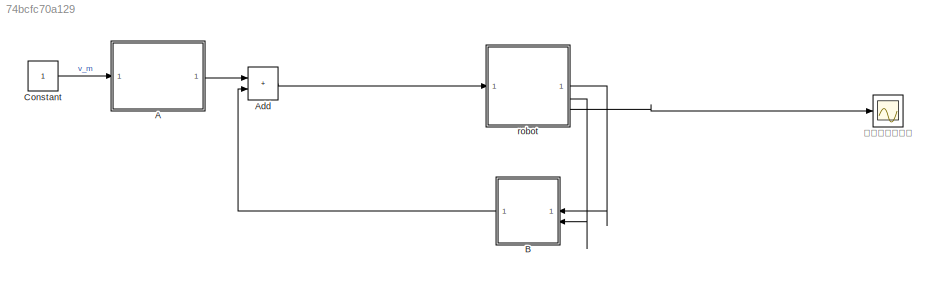
MODEL slx_74bcfc70a129
KIND model
CONFIG AbsTol = auto
CONFIG EnableMultiTasking = off
CONFIG FixedStep = auto
CONFIG MaxStep = auto
CONFIG MinStep = auto
CONFIG RelTol = 1e-3
CONFIG SampleTimeConstraint = Unconstrained
CONFIG SolverName = VariableStepAuto
CONFIG StartTime = 0.0
CONFIG StopTime = 10
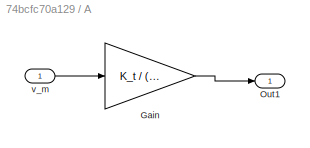
BLOCK [SubSystem] A
BLOCK [Gain] A/Gain
  Gain = K_t / (R*(m*r^2 + J))
BLOCK [Outport] A/Out1
BLOCK [Inport] A/v_m
BLOCK [Sum] Add
  IconShape = rectangular
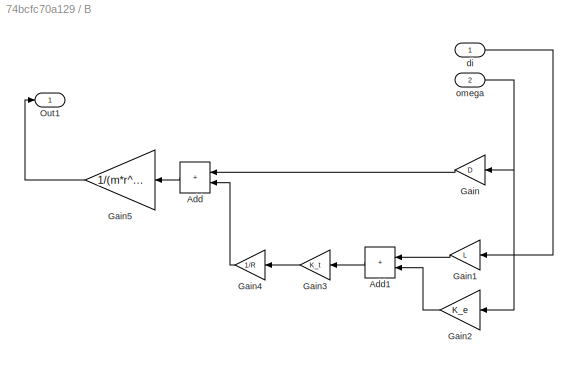
BLOCK [SubSystem] B
  NameLocation = top
BLOCK [Sum] B/Add
  IconShape = rectangular
  NameLocation = top
BLOCK [Sum] B/Add1
  IconShape = rectangular
  NameLocation = top
BLOCK [Gain] B/Gain
  Gain = D
  NameLocation = top
BLOCK [Gain] B/Gain1
  Gain = L
  NameLocation = top
BLOCK [Gain] B/Gain2
  Gain = K_e
  NameLocation = top
BLOCK [Gain] B/Gain3
  Gain = K_t
  NameLocation = top
BLOCK [Gain] B/Gain4
  Gain = 1/R
  NameLocation = top
BLOCK [Gain] B/Gain5
  Gain = 1/(m*r^2+J)
  NameLocation = top
BLOCK [Outport] B/Out1
BLOCK [Inport] B/di
BLOCK [Inport] B/omega
  Port = 2
BLOCK [Constant] Constant
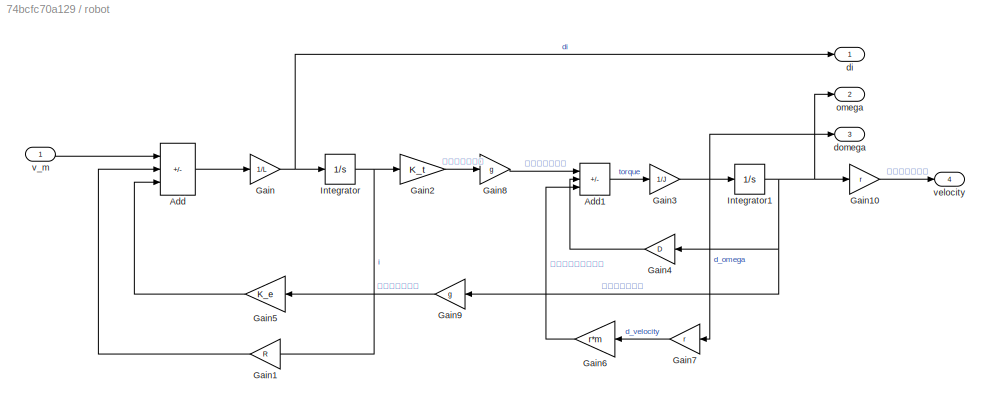
BLOCK [SubSystem] robot
BLOCK [Sum] robot/Add
  IconShape = rectangular
  Inputs = +--
BLOCK [Sum] robot/Add1
  IconShape = rectangular
  Inputs = +--
BLOCK [Gain] robot/Gain
  Gain = 1/L
BLOCK [Gain] robot/Gain1
  Gain = R
  NameLocation = top
BLOCK [Gain] robot/Gain10
  Gain = r
BLOCK [Gain] robot/Gain2
  Gain = K_t
BLOCK [Gain] robot/Gain3
  Gain = 1/J
BLOCK [Gain] robot/Gain4
  Gain = D
  NameLocation = top
BLOCK [Gain] robot/Gain5
  Gain = K_e
  NameLocation = top
BLOCK [Gain] robot/Gain6
  Gain = r*m
  NameLocation = top
BLOCK [Gain] robot/Gain7
  Gain = r
  NameLocation = top
BLOCK [Gain] robot/Gain8
  Gain = g
BLOCK [Gain] robot/Gain9
  Gain = g
  NameLocation = top
BLOCK [Integrator] robot/Integrator
BLOCK [Integrator] robot/Integrator1
BLOCK [Outport] robot/di
BLOCK [Outport] robot/domega
  Port = 3
BLOCK [Outport] robot/omega
  Port = 2
BLOCK [Inport] robot/v_m
BLOCK [Outport] robot/velocity
  Port = 4
BLOCK [Scope] ロボットの速度
  Floating = off
  NumInputPorts = 1
  ScopeSpecificationString = Simulink.scopes.TimeScopeBlockCfg('CurrentConfiguration', extmgr.ConfigurationSet(extmgr.Configuration('Core','General UI',true),extmgr.Configuration('Core','Source UI',true),extmgr.Configuration('Sources','WiredSimulink',true,'DataLoggingVariableName','ScopeData1'),extmgr.Configuration('Visuals','Time Domain',true,'SerializedDisplays',{struct('MinYLimReal','-490.38087','MaxYLimReal','693.99135','...<+1414ch>
LINE A/Gain:1 -> A/Out1:1
LINE A/v_m:1 -> A/Gain:1
LINE A:1 -> Add:1
LINE Add:1 -> robot:1
LINE B/Add1:1 -> B/Gain3:1
LINE B/Add:1 -> B/Gain5:1
LINE B/Gain1:1 -> B/Add1:1
LINE B/Gain2:1 -> B/Add1:2
LINE B/Gain3:1 -> B/Gain4:1
LINE B/Gain4:1 -> B/Add:2
LINE B/Gain5:1 -> B/Out1:1
LINE B/Gain:1 -> B/Add:1
LINE B/di:1 -> B/Gain1:1
NET B/omega:1 -> B/Gain2:1, B/Gain:1
LINE B:1 -> Add:2
LINE Constant:1 -> A:1
LINE robot/Add1:1 -> robot/Gain3:1
LINE robot/Add:1 -> robot/Gain:1
LINE robot/Gain10:1 -> robot/velocity:1
LINE robot/Gain1:1 -> robot/Add:2
LINE robot/Gain2:1 -> robot/Gain8:1
NET robot/Gain3:1 -> robot/Gain7:1, robot/Integrator1:1, robot/domega:1
LINE robot/Gain4:1 -> robot/Add1:2
LINE robot/Gain5:1 -> robot/Add:3
LINE robot/Gain6:1 -> robot/Add1:3
LINE robot/Gain7:1 -> robot/Gain6:1
LINE robot/Gain8:1 -> robot/Add1:1
LINE robot/Gain9:1 -> robot/Gain5:1
NET robot/Gain:1 -> robot/Integrator:1, robot/di:1
NET robot/Integrator1:1 -> robot/Gain10:1, robot/Gain4:1, robot/Gain9:1, robot/omega:1
NET robot/Integrator:1 -> robot/Gain1:1, robot/Gain2:1
LINE robot/v_m:1 -> robot/Add:1
LINE robot:1 -> B:1
LINE robot:2 -> B:2
LINE robot:4 -> ロボットの速度:1
note: NET lines group one-source signal fan-out (src -> all destinations, sorted); 1:1 wires keep LINE
